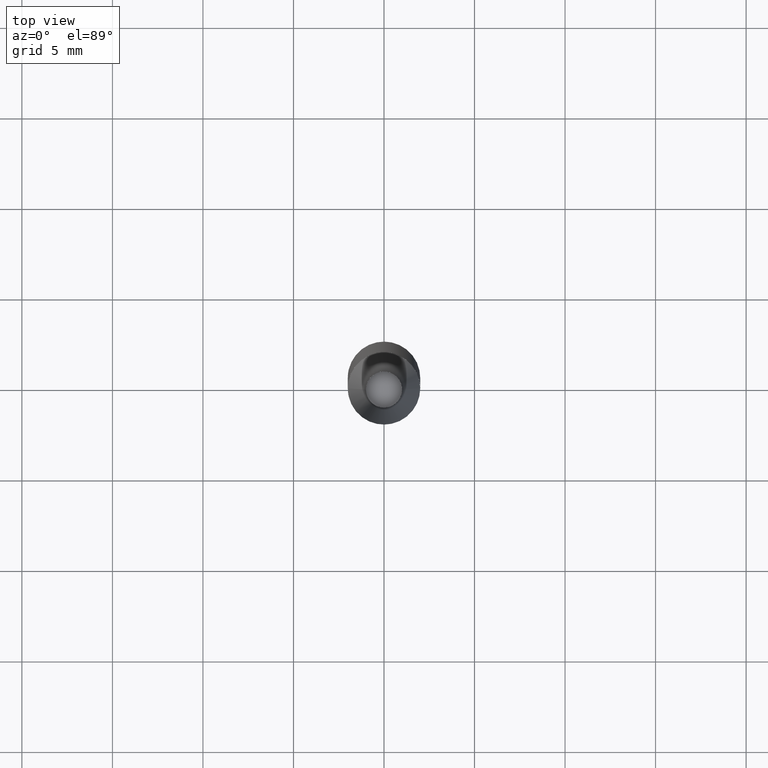
[diagram: clean part render]
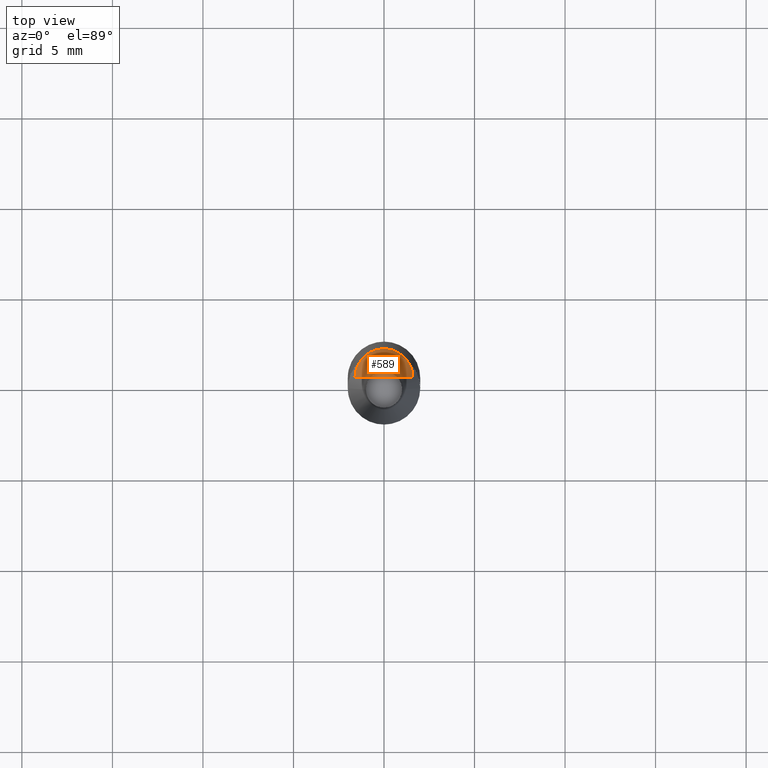
[diagram: same view with one face highlighted and labeled with its STEP entity id]
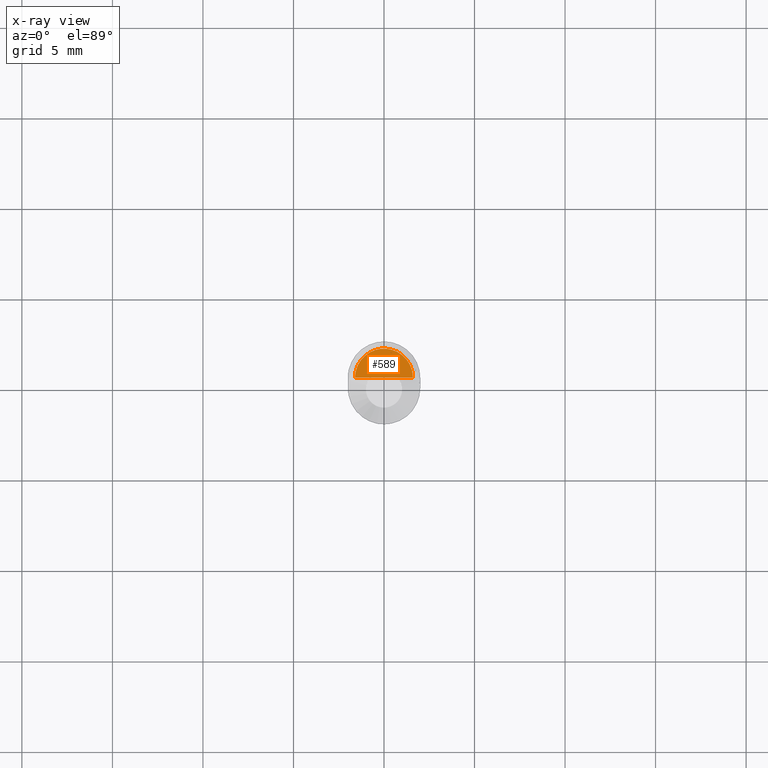
[diagram: x-ray of the same camera — body ghosted, the highlighted face saturated]
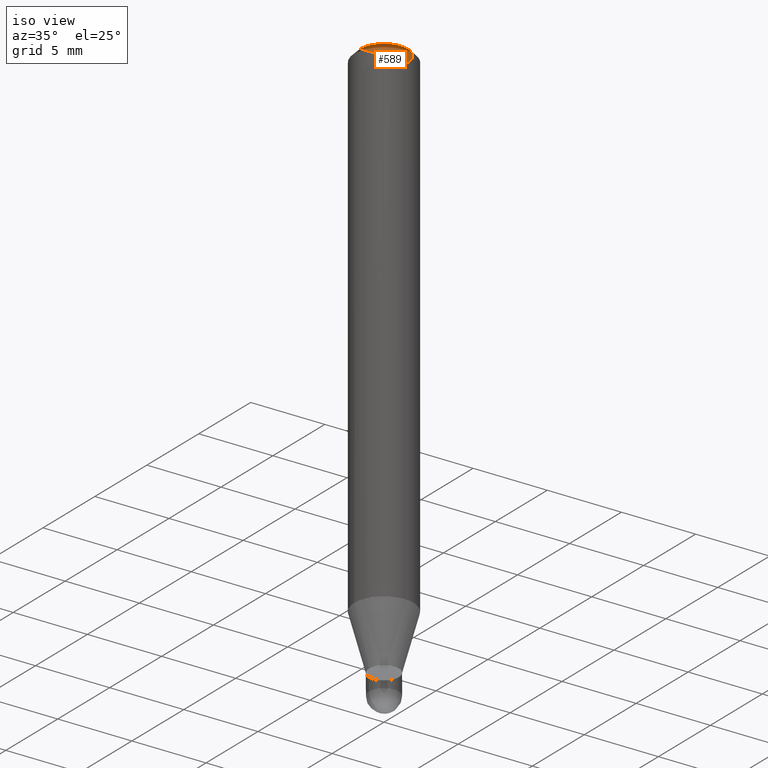
[diagram: same view with one face highlighted and labeled with its STEP entity id]
A machine part, top view. The second image highlights one B-rep face of the part: STEP entity #589.
The next image is the same camera in x-ray: the body ghosted, the highlighted face saturated — about 0% of this face is hidden behind the body in this view.
A second angle (iso view) of the same face is appended — the face is thin or edge-on in the first view.
In plain terms, the highlighted face is a freeform B-spline surface patch.
Its self-contained STEP definition (entity closure, byte-faithful):
#368=CARTESIAN_POINT('',(1.6,0.0,33.867949192431));
#369=CARTESIAN_POINT('',(1.6,1.6,33.867949192431));
#370=CARTESIAN_POINT('',(0.0,1.6,33.867949192431));
#371=CARTESIAN_POINT('',(-1.6,1.6,33.867949192431));
#372=CARTESIAN_POINT('',(-1.6,0.0,33.867949192431));
#373=CARTESIAN_POINT('',(0.0,0.0,33.867949192431));
#574=(
BOUNDED_SURFACE()
B_SPLINE_SURFACE(1,2,(
(#368,#369,#370,#371,#372),
(#373,#373,#373,#373,#373)
), .UNSPECIFIED.,.F.,.F.,.F.)
B_SPLINE_SURFACE_WITH_KNOTS((2,2),(3,2,3),(
0.0,1.0),(
0.0,0.5,1.0), .UNSPECIFIED.)
GEOMETRIC_REPRESENTATION_ITEM()
RATIONAL_B_SPLINE_SURFACE(((1.0,0.707106781187,1.0,0.707106781187,1.0),
(1.0,0.707106781187,1.0,0.707106781187,1.0)
))
REPRESENTATION_ITEM('')
SURFACE()
);
#575=(
BOUNDED_CURVE()
B_SPLINE_CURVE(1,(#373,#368),.UNSPECIFIED.,.F.,.F.)
B_SPLINE_CURVE_WITH_KNOTS((2,2),
(0.0,1.0),.UNSPECIFIED.)
CURVE()
GEOMETRIC_REPRESENTATION_ITEM()
RATIONAL_B_SPLINE_CURVE((1.0,1.0))
REPRESENTATION_ITEM('')
);
#576=(
BOUNDED_CURVE()
B_SPLINE_CURVE(2,(#368,#369,#370,#371,#372),.UNSPECIFIED.,.F.,.F.)
B_SPLINE_CURVE_WITH_KNOTS((3,2,3),
(0.0,0.5,1.0),.UNSPECIFIED.)
CURVE()
GEOMETRIC_REPRESENTATION_ITEM()
RATIONAL_B_SPLINE_CURVE((1.0,0.707106781187,1.0,0.707106781187,1.0))
REPRESENTATION_ITEM('')
);
#577=(
BOUNDED_CURVE()
B_SPLINE_CURVE(1,(#372,#373),.UNSPECIFIED.,.F.,.F.)
B_SPLINE_CURVE_WITH_KNOTS((2,2),
(0.0,1.0),.UNSPECIFIED.)
CURVE()
GEOMETRIC_REPRESENTATION_ITEM()
RATIONAL_B_SPLINE_CURVE((1.0,1.0))
REPRESENTATION_ITEM('')
);
#578=VERTEX_POINT('',#368);
#579=VERTEX_POINT('',#372);
#580=VERTEX_POINT('',#373);
#581=EDGE_CURVE('',#580,#578,#575,.T.);
#582=EDGE_CURVE('',#578,#579,#576,.T.);
#583=EDGE_CURVE('',#579,#580,#577,.T.);
#584=ORIENTED_EDGE('',*,*,#581,.T.);
#585=ORIENTED_EDGE('',*,*,#582,.T.);
#586=ORIENTED_EDGE('',*,*,#583,.T.);
#587=EDGE_LOOP('',(#584,#585,#586));
#588=FACE_OUTER_BOUND('',#587,.T.);
#589=ADVANCED_FACE('',(#588),#574,.T.);